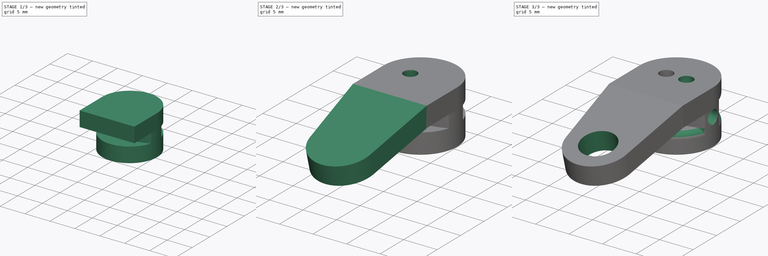
[diagram: build sequence overview — one tinted view per stage of 3, left to right]
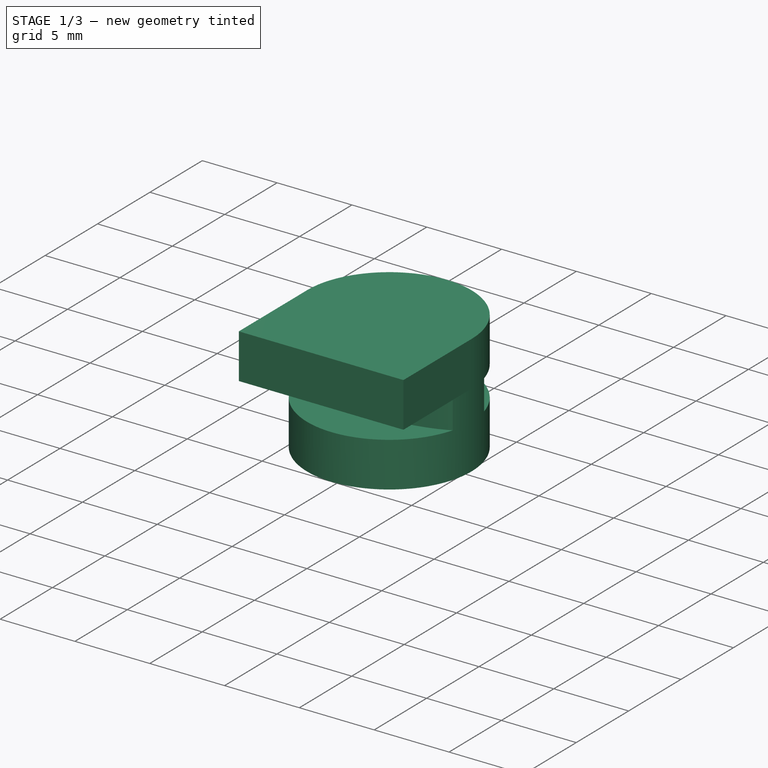
[diagram: stage 1 of 3 — iso view after this stage's code; geometry added in this stage tinted green]
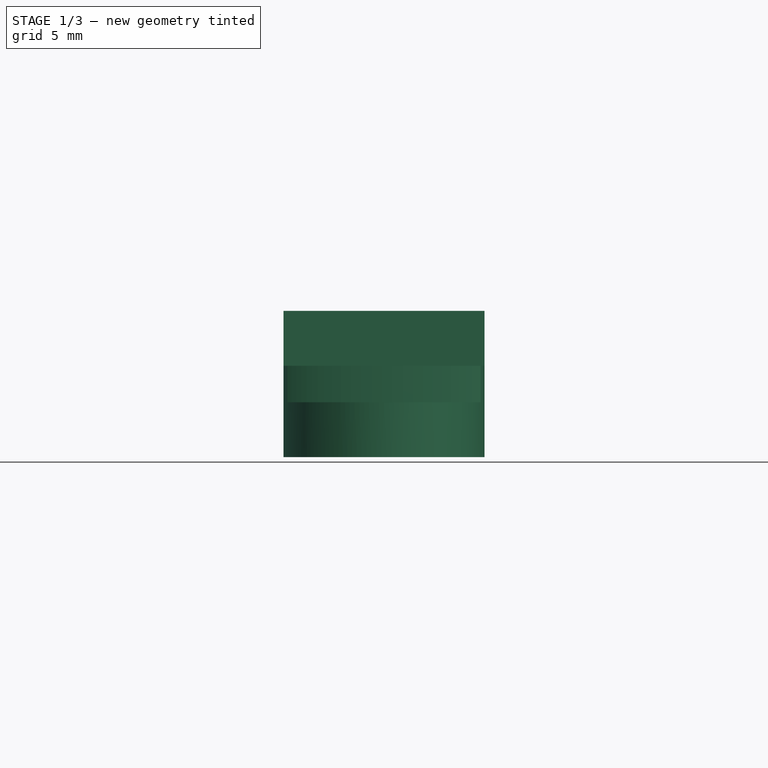
[diagram: stage 1 of 3 — front view after this stage's code; geometry added in this stage tinted green]
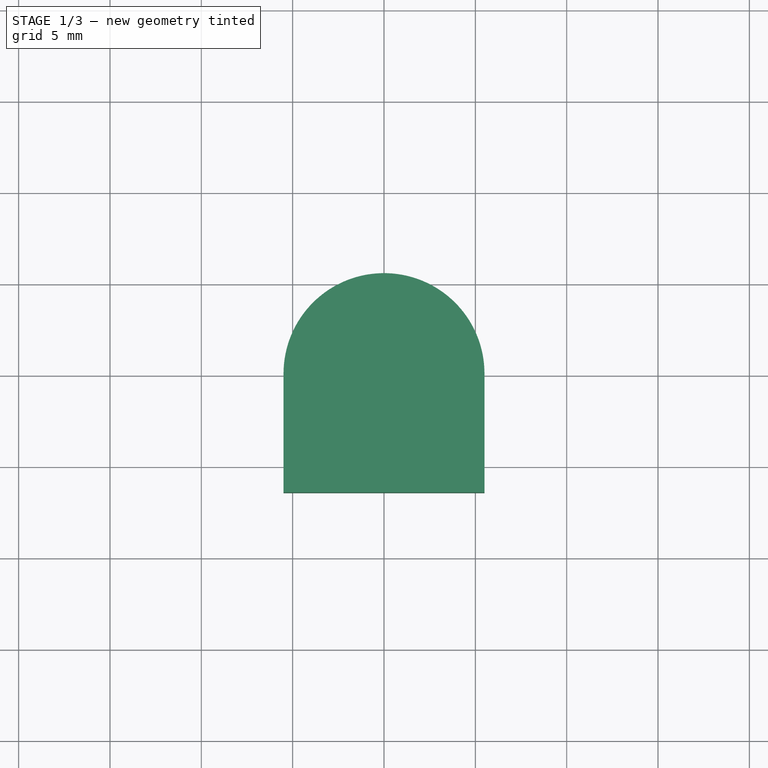
[diagram: stage 1 of 3 — top view after this stage's code; geometry added in this stage tinted green]
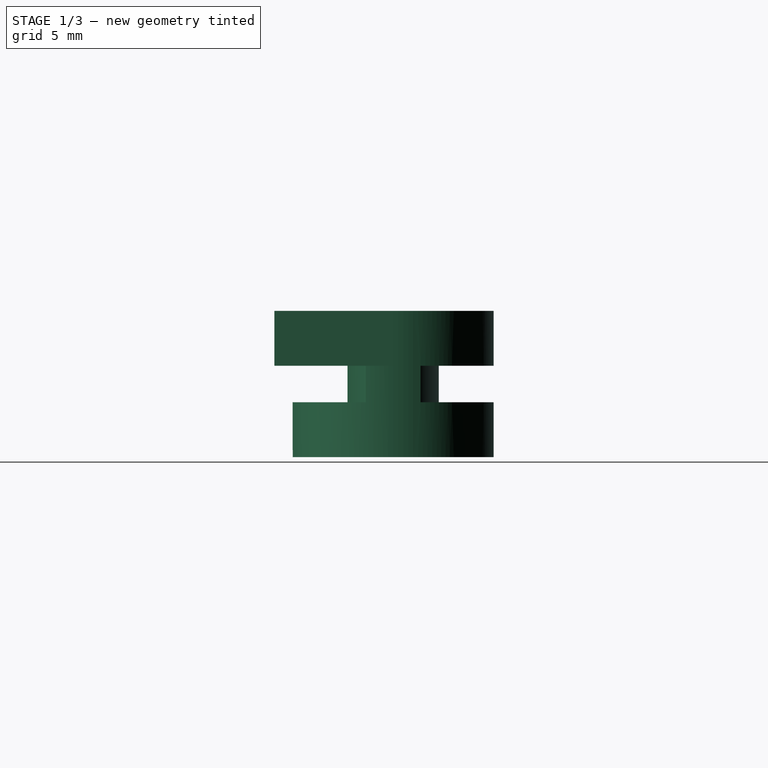
[diagram: stage 1 of 3 — right view after this stage's code; geometry added in this stage tinted green]
FCSTD DOCUMENT  (FreeCAD 0.17R13541 (Git))
Label: C-skenaGlide
License: All rights reserved
LicenseURL: http://en.wikipedia.org/wiki/All_rights_reserved
objects: Sketcher::SketchObject×12, PartDesign::Pad×3, PartDesign::Pocket×2, PartDesign::Plane×2, PartDesign::SubtractivePipe×2, Spreadsheet::Sheet×1, PartDesign::Fillet×1, PartDesign::Body×1
note: 30 computed .brp shape members not serialized (recipe doc carries the construction recipe); baked Part::Feature solids carry a one-line shape summary decoded from their .brp

FEATURE [Spreadsheet::Sheet] Spreadsheet  label="sh"
  cells = A1=threadHoleDiam; B1(threadHoleDiam)==2mm; A2=threadHoleEdge; B2(threadHoleEdge)==0.5mm; A3=bodyLen; B3(bodyLen)==26mm; A4=trenchWidth; B4(trenchWidth)==2mm; A5=trenchWallThickness; B5(trenchWallThickness)==3mm; A6=trenchFloorThickness; B6(trenchFloorThickness)==5mm; A7=circleDiam; B7(circleDiam)==11mm; A8=hookHoleDiam; B8(hookHoleDiam)==5mm; A9=hookStraightLen; B9(hookStraightLen)==circleDiam / 2 + 1mm; A11=bodyDepth; B11(bodyDepth)==trenchWidth + trenchWallThickness * 2
FEATURE [Sketcher::SketchObject] Sketch
  MapMode = 5
  Support = -> [XY_Plane]
  expr: Constraints[1] = Spreadsheet.circleDiam / 2
  sketch-geometry (1):
    g0: Circle CenterX=0 CenterY=0 CenterZ=0 NormalX=0 NormalY=0 NormalZ=1 AngleXU=0 Radius=5.5
  constraints (2):
    c: Coincident(g0,g-1)
    c: Radius(g0) = 5.5
FEATURE [PartDesign::Pad] Pad
  Length = 8
  Length2 = 100
  Midplane = true
  Profile = -> Sketch
  Type = 0
  expr: Length = sh.trenchWidth + sh.trenchWallThickness * 2
FEATURE [Sketcher::SketchObject] Sketch001
  MapMode = 5
  Support = -> [XY_Plane]
  expr: Constraints[12] = sh.threadHoleDiam / 2 + sh.threadHoleEdge
  expr: Constraints[10] = sh.trenchFloorThickness / 2
  expr: Constraints[3] = sh.threadHoleDiam / 2 + sh.threadHoleEdge
  expr: Constraints[1] = sh.circleDiam / 2
  sketch-geometry (6):
    g0: ArcOfCircle CenterX=0 CenterY=0 CenterZ=0 NormalX=0 NormalY=0 NormalZ=1 AngleXU=0 Radius=5.5 StartAngle=0.276227 EndAngle=2.86537
    g1: ArcOfEllipse CenterX=0 CenterY=0 CenterZ=0 NormalX=0 NormalY=0 NormalZ=1 MajorRadius=6.61438 MinorRadius=2.5 AngleXU=0 StartAngle=0.643501 EndAngle=2.49809
    g2: LineSegment [constr] StartX=6.61438 StartY=0 StartZ=0 EndX=-6.61438 EndY=0 EndZ=0
    g3: LineSegment [constr] StartX=0 StartY=2.5 StartZ=0 EndX=0 EndY=-2.5 EndZ=0
    g4: GeomPoint X=6.12372 Y=0 Z=0
    g5: GeomPoint X=-6.12372 Y=0 Z=0
  constraints (10):
    c: Coincident(g0,g-1)
    c: Radius(g0) = 5.5
    c: Horizontal(g0,g0)
    c: DistanceY(g-1,g0) = 1.5
    c: InternalAlignment(g2-g5 -> g1) x4
    c: Coincident(g1,g-1)
    c: Horizontal(g2,g2)
    c: DistanceY(g-1,g3) = 2.5
    c: Coincident(g1,g0)
    c: DistanceY(g-1,g1) = 1.5
FEATURE [Sketcher::SketchObject] MirroredSketch
  sketch-geometry (6):
    g0: ArcOfCircle CenterX=0 CenterY=0 CenterZ=0 NormalX=0 NormalY=0 NormalZ=1 AngleXU=0 Radius=5.5 StartAngle=3.41782 EndAngle=6.00696
    g1: ArcOfEllipse CenterX=0 CenterY=0 CenterZ=0 NormalX=0 NormalY=0 NormalZ=1 MajorRadius=6.61438 MinorRadius=2.5 AngleXU=0 StartAngle=3.78509 EndAngle=5.63968
    g2: LineSegment [constr] StartX=6.61438 StartY=0 StartZ=0 EndX=-6.61438 EndY=0 EndZ=0
    g3: LineSegment [constr] StartX=0 StartY=-2.5 StartZ=0 EndX=0 EndY=2.5 EndZ=0
    g4: GeomPoint X=6.12372 Y=0 Z=0
    g5: GeomPoint X=-6.12372 Y=0 Z=0
  constraints (2):
    c: Radius(g0) = 5.5
    c: Coincident(g1,g0)
FEATURE [Sketcher::SketchObject] Sketch002  label="Trench"
  expr: Constraints[14] = sh.threadHoleDiam / 2 + sh.threadHoleEdge
  expr: Constraints[12] = sh.trenchFloorThickness / 2
  expr: Constraints[5] = sh.threadHoleDiam / 2 + sh.threadHoleEdge
  expr: Constraints[3] = sh.circleDiam / 2
  sketch-geometry (12):
    g0: ArcOfCircle CenterX=0 CenterY=0 CenterZ=0 NormalX=0 NormalY=0 NormalZ=1 AngleXU=0 Radius=5.5 StartAngle=3.41782 EndAngle=6.00696
    g1: ArcOfEllipse CenterX=0 CenterY=0 CenterZ=0 NormalX=0 NormalY=0 NormalZ=1 MajorRadius=6.61438 MinorRadius=2.5 AngleXU=0 StartAngle=3.78509 EndAngle=5.63968
    g2: LineSegment [constr] StartX=6.61438 StartY=0 StartZ=0 EndX=-6.61438 EndY=0 EndZ=0
    g3: LineSegment [constr] StartX=0 StartY=-2.5 StartZ=0 EndX=0 EndY=2.5 EndZ=0
    g4: GeomPoint X=6.12372 Y=0 Z=0
    g5: GeomPoint X=-6.12372 Y=0 Z=0
    g6: ArcOfCircle CenterX=0 CenterY=0 CenterZ=0 NormalX=0 NormalY=0 NormalZ=1 AngleXU=0 Radius=5.5 StartAngle=0.276227 EndAngle=2.86537
    g7: ArcOfEllipse CenterX=0 CenterY=0 CenterZ=0 NormalX=0 NormalY=0 NormalZ=1 MajorRadius=6.61438 MinorRadius=2.5 AngleXU=0 StartAngle=0.643501 EndAngle=2.49809
    g8: LineSegment [constr] StartX=6.61438 StartY=0 StartZ=0 EndX=-6.61438 EndY=0 EndZ=0
    g9: LineSegment [constr] StartX=0 StartY=2.5 StartZ=0 EndX=0 EndY=-2.5 EndZ=0
    g10: GeomPoint X=6.12372 Y=0 Z=0
    g11: GeomPoint X=-6.12372 Y=0 Z=0
  constraints (12):
    c: Radius(g0) = 5.5
    c: Coincident(g1,g0)
    c: Coincident(g6,g-1)
    c: Radius(g6) = 5.5
    c: Horizontal(g6,g6)
    c: DistanceY(g-1,g6) = 1.5
    c: InternalAlignment(g8-g11 -> g7) x4
    c: Coincident(g7,g-1)
    c: Horizontal(g8,g8)
    c: DistanceY(g-1,g9) = 2.5
    c: Coincident(g7,g6)
    c: DistanceY(g-1,g7) = 1.5
FEATURE [PartDesign::Pocket] Pocket
  BaseFeature = -> Pad
  Length = 2
  Length2 = 100
  Midplane = true
  Profile = -> Sketch002
  Type = 0
FEATURE [Sketcher::SketchObject] Sketch003  label="threadHolePath"
  MapMode = 5
  Placement = pos=(0,0,0) rot=(1,0,0;1.5708rad)
  Support = -> [XZ_Plane]
  expr: Constraints[4] = sh.trenchWidth / 2 + sh.trenchWallThickness
  expr: Constraints[3] = sh.circleDiam / 2
  sketch-geometry (1):
    g0: ArcOfCircle CenterX=5.5 CenterY=4 CenterZ=0 NormalX=0 NormalY=0 NormalZ=1 AngleXU=0 Radius=4 StartAngle=3.14159 EndAngle=4.71239
  constraints (5):
    c: PointOnObject(g0,g-1)
    c: Horizontal(g0,g0)
    c: Vertical(g0,g0)
    c: DistanceX(g-1,g0) = 5.5
    c: DistanceY(g-1,g0) = 4
FEATURE [Sketcher::SketchObject] MirroredSketch001
  Placement = pos=(0,0,0) rot=(1,0,0;1.5708rad)
  sketch-geometry (1):
    g0: ArcOfCircle CenterX=-5.5 CenterY=-4 CenterZ=0 NormalX=0 NormalY=0 NormalZ=1 AngleXU=0 Radius=4 StartAngle=4e-12 EndAngle=1.5708
FEATURE [Sketcher::SketchObject] MirroredSketch002  label="threadHolePathMirrored"
  Placement = pos=(0,0,0) rot=(1,0,0;1.5708rad)
  sketch-geometry (1):
    g0: ArcOfCircle CenterX=-5.5 CenterY=4 CenterZ=0 NormalX=0 NormalY=0 NormalZ=1 AngleXU=0 Radius=4 StartAngle=4.71239 EndAngle=6.28319
FEATURE [PartDesign::Plane] DatumPlane
  AttachmentOffset = pos=(0,0,4) rot=(0,0,1;0rad)
  MapMode = 5
  Placement = pos=(0,0,4) rot=(0,0,1;0rad)
  Support = -> [XY_Plane]
  expr: AttachmentOffset.Base.z = sh.bodyDepth / 2
FEATURE [Sketcher::SketchObject] Sketch004  label="threadHole"
  MapMode = 5
  Placement = pos=(0,0,4) rot=(0,0,1;0rad)
  Support = -> [DatumPlane]
  expr: Constraints[2] = sh.circleDiam / 2 - sh.bodyDepth / 2
  expr: Constraints[1] = sh.threadHoleDiam / 2
  sketch-geometry (1):
    g0: Circle CenterX=-1.5 CenterY=0 CenterZ=0 NormalX=0 NormalY=0 NormalZ=1 AngleXU=0 Radius=1
  constraints (3):
    c: PointOnObject(g0,g-1)
    c: Radius(g0) = 1
    c: DistanceX(g0,g-1) = 1.5
FEATURE [Sketcher::SketchObject] MirroredSketch003  label="threadHoleMirrored"
  Placement = pos=(0,0,4) rot=(0,0,1;0rad)
  sketch-geometry (1):
    g0: Circle CenterX=1.5 CenterY=0 CenterZ=0 NormalX=0 NormalY=0 NormalZ=1 AngleXU=0 Radius=1
  constraints (1):
    c: Radius(g0) = 1
FEATURE [Sketcher::SketchObject] Sketch006  label="HookStraight"
  MapMode = 5
  Placement = pos=(0,0,4) rot=(0,0,1;0rad)
  Support = -> [DatumPlane]
  expr: Constraints[10] = sh.circleDiam
  expr: Constraints[11] = sh.hookStraightLen
  sketch-geometry (4):
    g0: LineSegment StartX=-5.5 StartY=0 StartZ=0 EndX=5.5 EndY=0 EndZ=0
    g1: LineSegment StartX=5.5 StartY=0 StartZ=0 EndX=5.5 EndY=-6.5 EndZ=0
    g2: LineSegment StartX=5.5 StartY=-6.5 StartZ=0 EndX=-5.5 EndY=-6.5 EndZ=0
    g3: LineSegment StartX=-5.5 StartY=-6.5 StartZ=0 EndX=-5.5 EndY=0 EndZ=0
  constraints (12):
    c: Coincident(g0,g1)
    c: Coincident(g1,g2)
    c: Coincident(g2,g3)
    c: Coincident(g3,g0)
    c: Horizontal(g0)
    c: Horizontal(g2)
    c: Vertical(g1)
    c: Vertical(g3)
    c: PointOnObject(g0,g-1)
    c: Symmetric(g0,g0,g-1)
    c: DistanceX(g0,g0) = 11
    c: DistanceY(g1,g1) = 6.5
FEATURE [PartDesign::Pad] Pad001
  BaseFeature = -> Pocket
  Length = 3
  Length2 = 100
  Profile = -> Sketch006
  Reversed = true
  Type = 0
  expr: Length = sh.trenchWallThickness
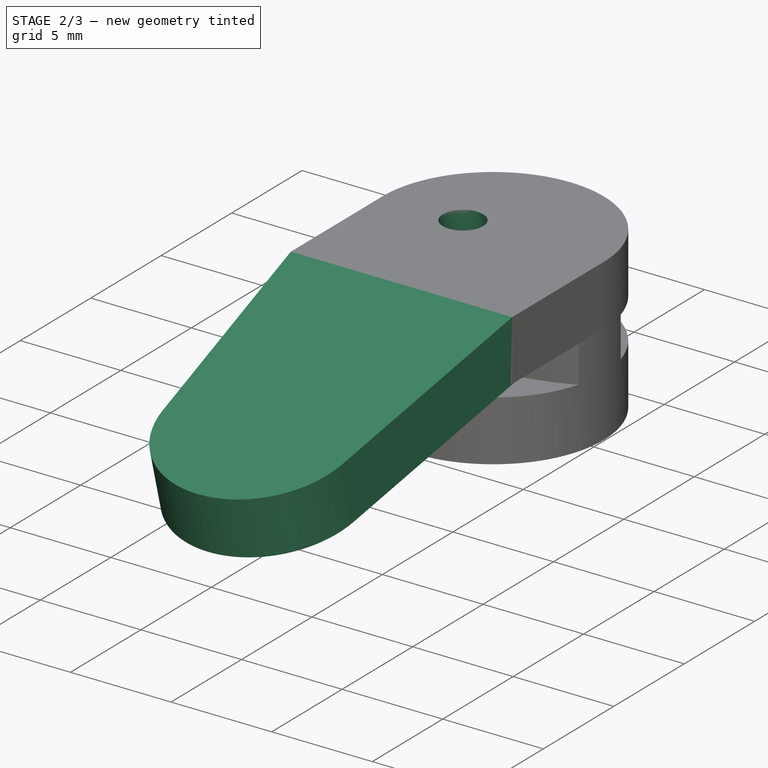
[diagram: stage 2 of 3 — iso view after this stage's code; geometry added in this stage tinted green]
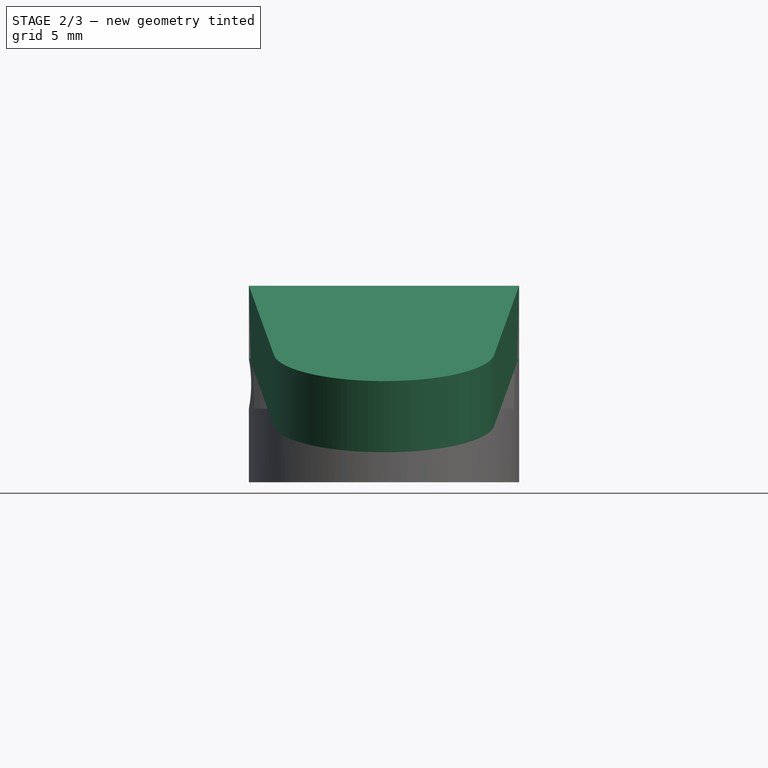
[diagram: stage 2 of 3 — front view after this stage's code; geometry added in this stage tinted green]
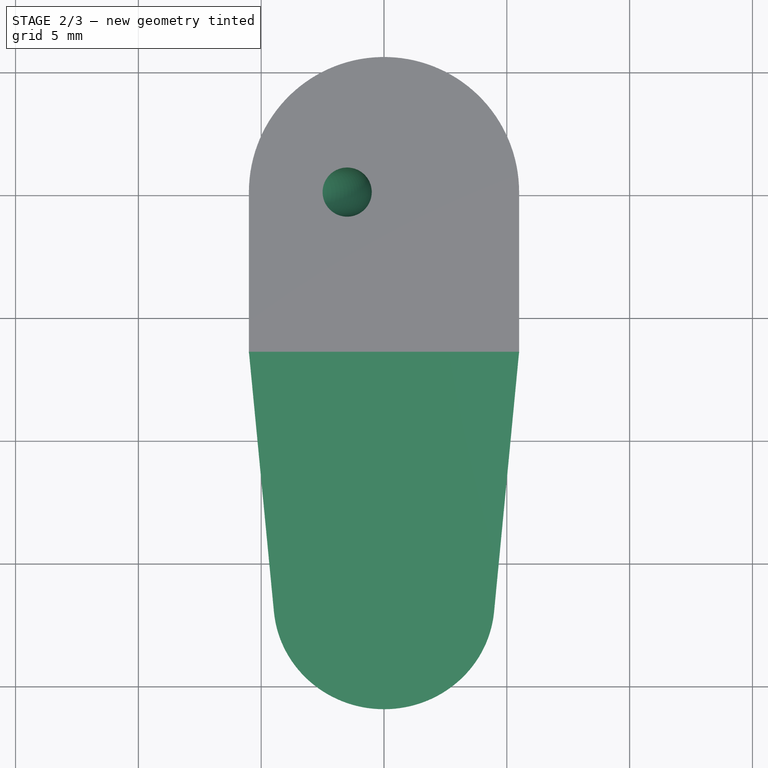
[diagram: stage 2 of 3 — top view after this stage's code; geometry added in this stage tinted green]
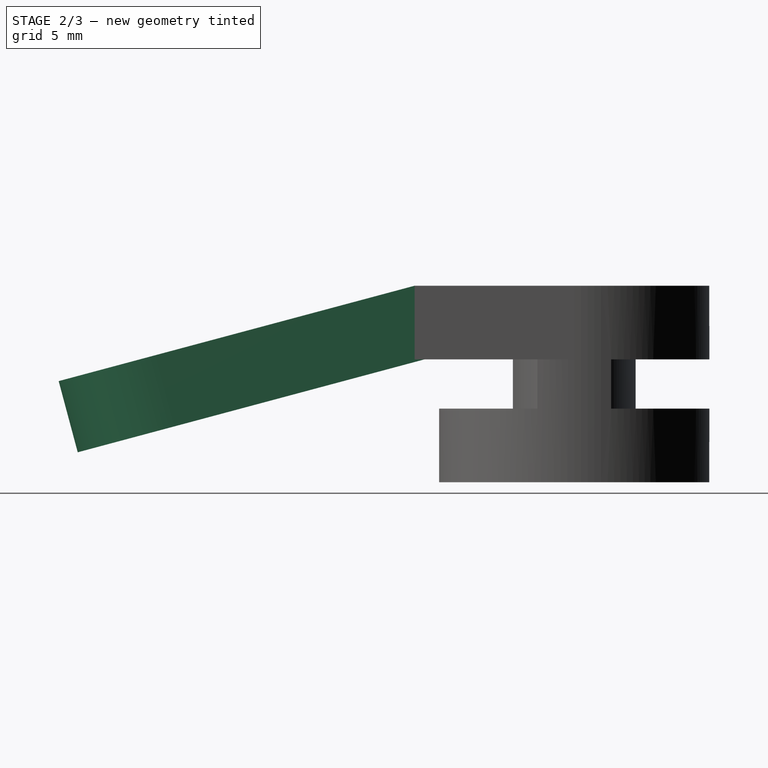
[diagram: stage 2 of 3 — right view after this stage's code; geometry added in this stage tinted green]
FEATURE [PartDesign::Plane] DatumPlane001
  AttachmentOffset = pos=(0,-6.5,0) rot=(1,0,0;0.261799rad)
  MapMode = 5
  Placement = pos=(0,-6.5,4) rot=(1,0,0;0.261799rad)
  Support = -> [Pad001]
  expr: AttachmentOffset.Base.y = -sh.hookStraightLen
FEATURE [Sketcher::SketchObject] Sketch007  label="HookAngled"
  MapMode = 5
  Placement = pos=(0,-6.5,4) rot=(1,0,0;0.261799rad)
  Support = -> [DatumPlane001]
  expr: Constraints.hookEndRadius = sh.hookHoleDiam / 2 + 2mm
  expr: Constraints[7] = sh.circleDiam
  expr: Constraints.lenToHoleCenter = sh.bodyLen - Constraints.hookEndRadius - sh.circleDiam
  sketch-geometry (4):
    g0: LineSegment StartX=-5.5 StartY=0 StartZ=0 EndX=-4.48051 EndY=-10.9184 EndZ=0
    g1: ArcOfCircle CenterX=0 CenterY=-10.5 CenterZ=0 NormalX=0 NormalY=0 NormalZ=1 AngleXU=0 Radius=4.5 StartAngle=3.2347 EndAngle=6.19008
    g2: LineSegment StartX=4.48051 StartY=-10.9184 StartZ=0 EndX=5.5 EndY=0 EndZ=0
    g3: LineSegment StartX=5.5 StartY=0 StartZ=0 EndX=-5.5 EndY=0 EndZ=0
  constraints (12):
    c: PointOnObject(g0,g-1)
    c: Tangent(g0,g1) = -1.5708
    c: Coincident(g1,g2)
    c: Coincident(g2,g3)
    c: Coincident(g3,g0)
    c: Horizontal(g3)
    c: Symmetric(g0,g2,g-1)
    c: DistanceX(g3,g3) = 11
    c: PointOnObject(g1,g-2)
    c: Horizontal(g0,g1)
    c: Radius(g1) = 4.5  'hookEndRadius'
    c: DistanceY(g1,g-1) = 10.5  'lenToHoleCenter'
FEATURE [PartDesign::Pad] Pad002
  BaseFeature = -> Pad001
  Length = 3
  Length2 = 100
  Profile = -> Sketch007
  Reversed = true
  Type = 0
  expr: Length = sh.trenchWallThickness
FEATURE [PartDesign::SubtractivePipe] SubtractivePipe
  AuxilleryCurvelinear = true
  AuxillerySpineTangent = false
  BaseFeature = -> Pad002
  Binormal = (0,0,0)
  Mode = 0
  Profile = -> Sketch004
  Spine = -> MirroredSketch002 [Edge1]
  SpineTangent = false
  Transformation = 0
  Transition = 0
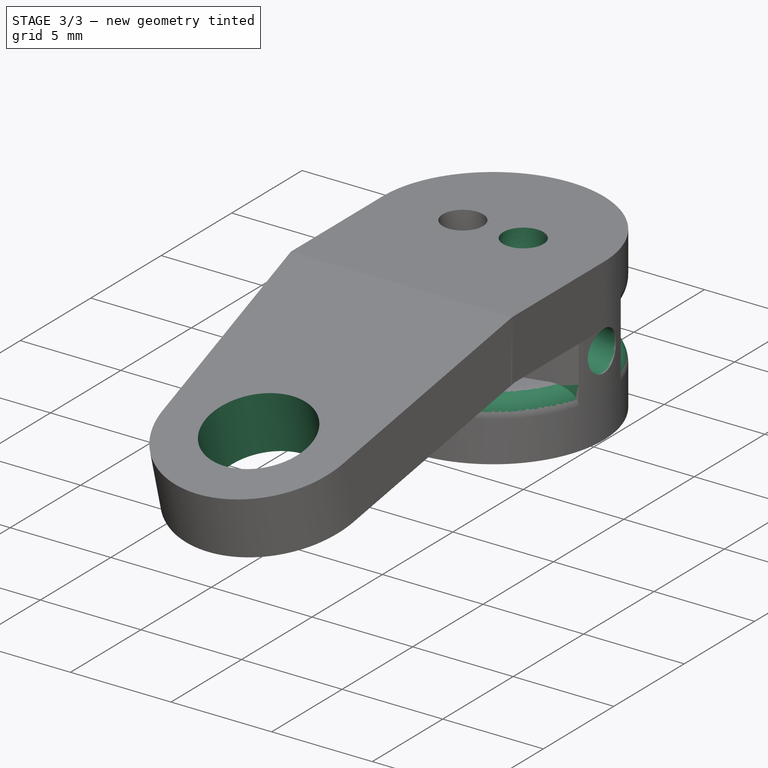
[diagram: stage 3 of 3 — iso view after this stage's code; geometry added in this stage tinted green]
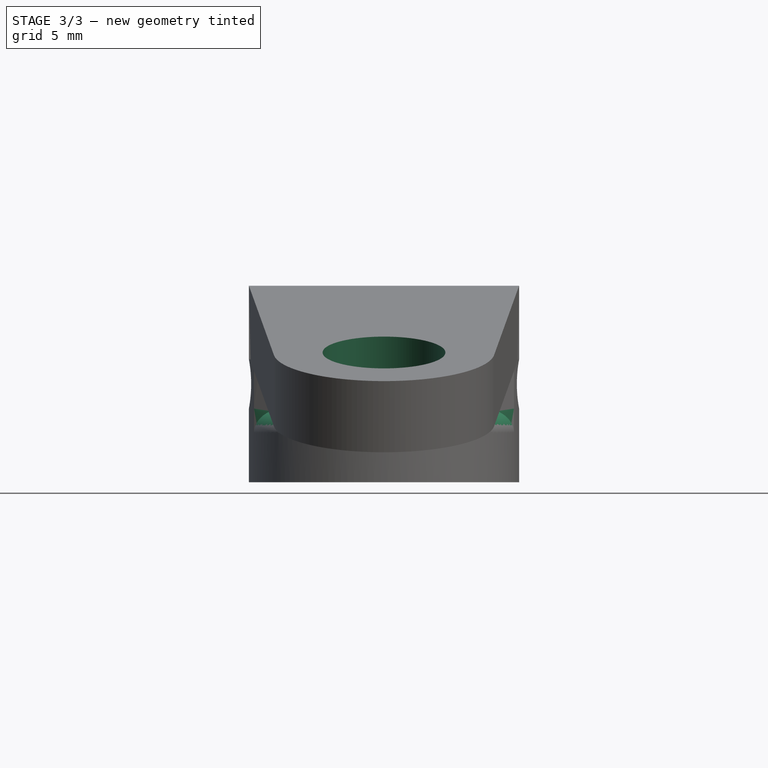
[diagram: stage 3 of 3 — front view after this stage's code; geometry added in this stage tinted green]
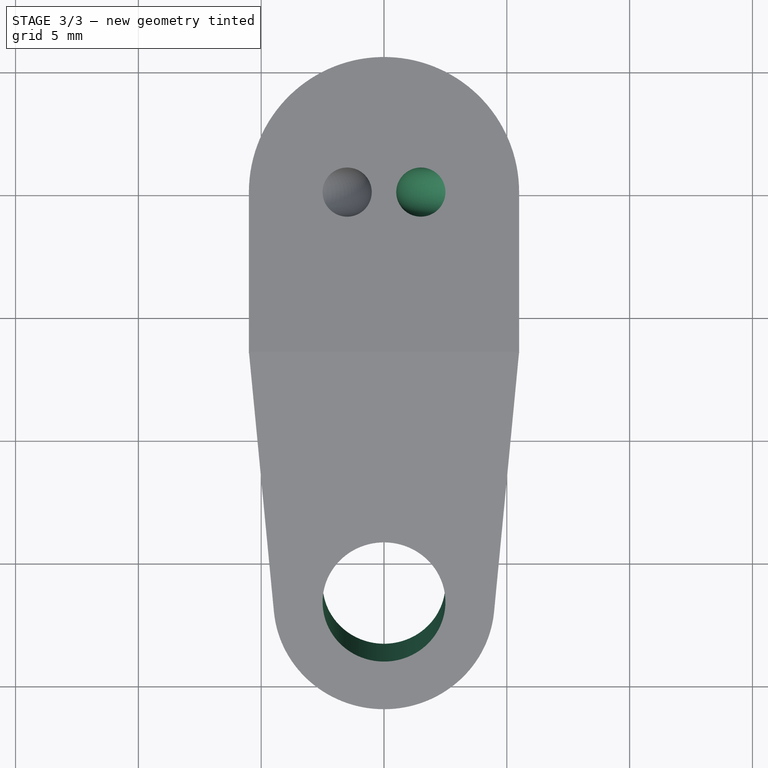
[diagram: stage 3 of 3 — top view after this stage's code; geometry added in this stage tinted green]
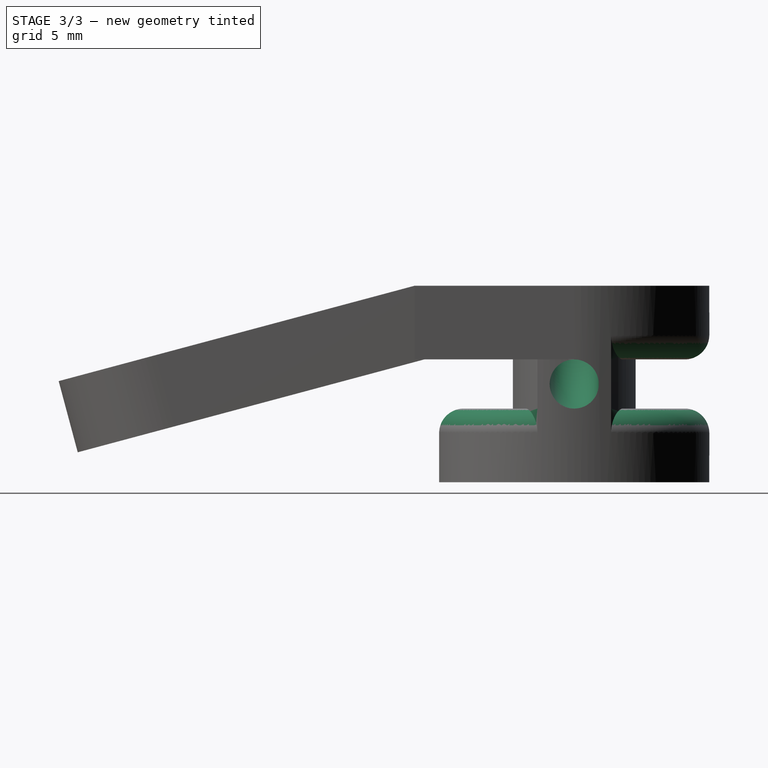
[diagram: stage 3 of 3 — right view after this stage's code; geometry added in this stage tinted green]
FEATURE [PartDesign::SubtractivePipe] SubtractivePipe001
  AuxilleryCurvelinear = true
  AuxillerySpineTangent = false
  BaseFeature = -> SubtractivePipe
  Binormal = (0,0,0)
  Mode = 0
  Profile = -> MirroredSketch003
  Spine = -> Sketch003 [Edge1]
  SpineTangent = false
  Transformation = 0
  Transition = 0
FEATURE [Sketcher::SketchObject] Sketch008
  MapMode = 5
  Placement = pos=(0,-6.5,4) rot=(1,0,0;0.261799rad)
  Support = -> [DatumPlane001]
  expr: Constraints[2] = HookAngled.Constraints.lenToHoleCenter
  expr: Constraints[1] = sh.hookHoleDiam / 2
  sketch-geometry (1):
    g0: Circle CenterX=0 CenterY=-10.5 CenterZ=0 NormalX=0 NormalY=0 NormalZ=1 AngleXU=0 Radius=2.5
  constraints (3):
    c: PointOnObject(g0,g-2)
    c: Radius(g0) = 2.5
    c: DistanceY(g0,g-1) = 10.5
FEATURE [PartDesign::Pocket] Pocket001
  BaseFeature = -> SubtractivePipe001
  Length = 0
  Length2 = 100
  Profile = -> Sketch008
  Type = 2
FEATURE [PartDesign::Fillet] Fillet
  Base = -> Pocket001 [Edge16,Edge13,Edge5]
  BaseFeature = -> Pocket001
  Radius = 1
FEATURE [PartDesign::Body] Body
  Group = -> [Sketch,Pad,Sketch001,MirroredSketch,Sketch002,Pocket,Sketch003,MirroredSketch001,MirroredSketch002,DatumPlane,Sketch004,MirroredSketch003,Sketch006,Pad001,DatumPlane001,Sketch007,Pad002,SubtractivePipe,SubtractivePipe001,Sketch008,Pocket001,Fillet]
  Origin = -> Origin
  Tip = -> Fillet
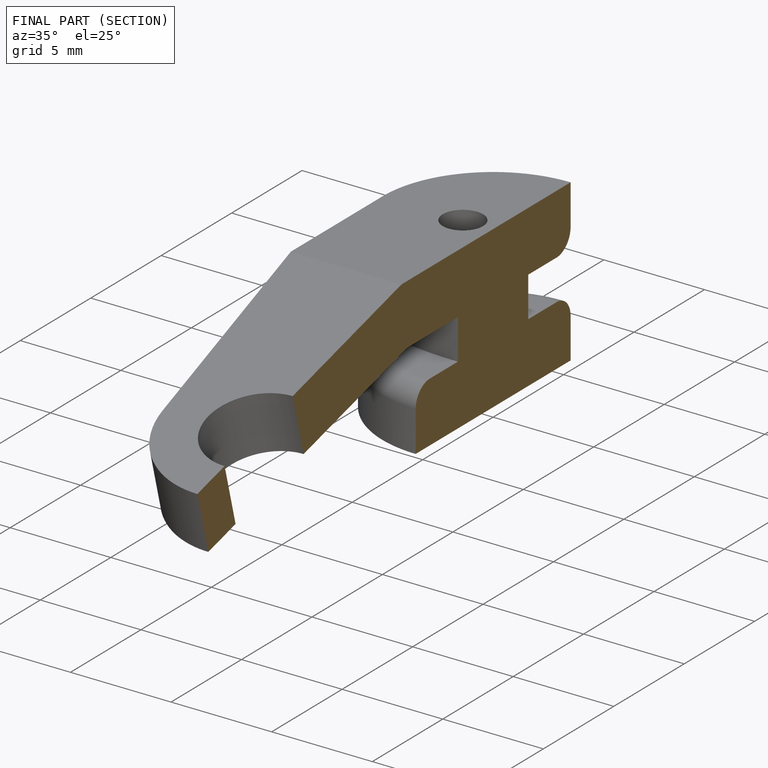
[diagram: finished part — half-section view (interior)]
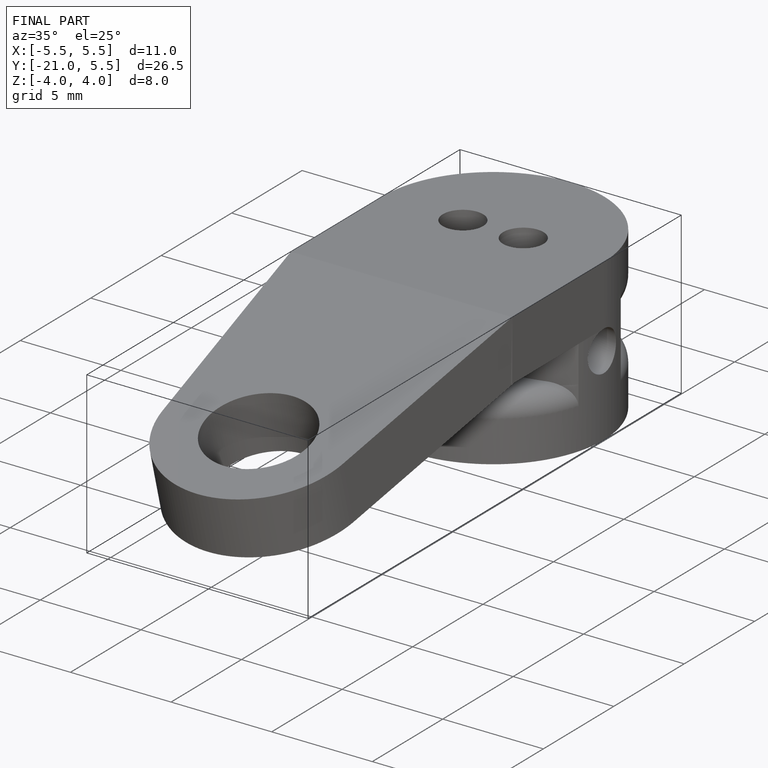
[diagram: finished part — iso view with bounding-box wireframe]
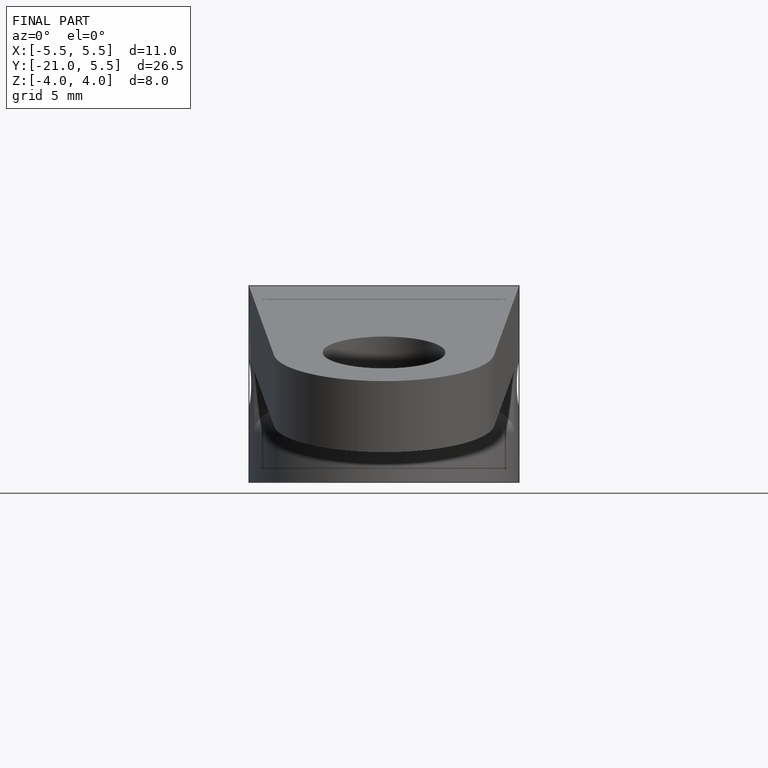
[diagram: finished part — front view with bounding-box wireframe]
